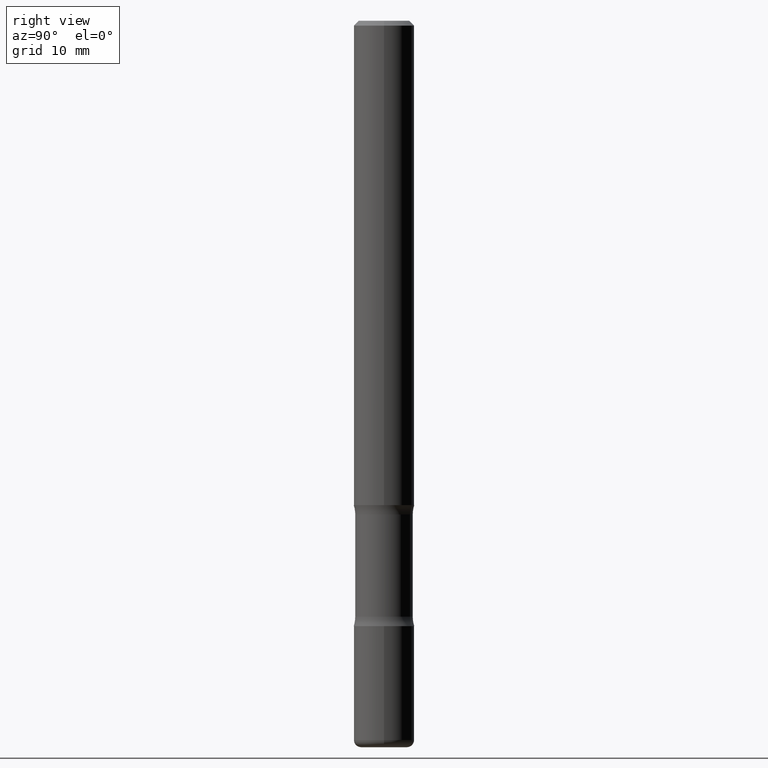
[diagram: clean part render]
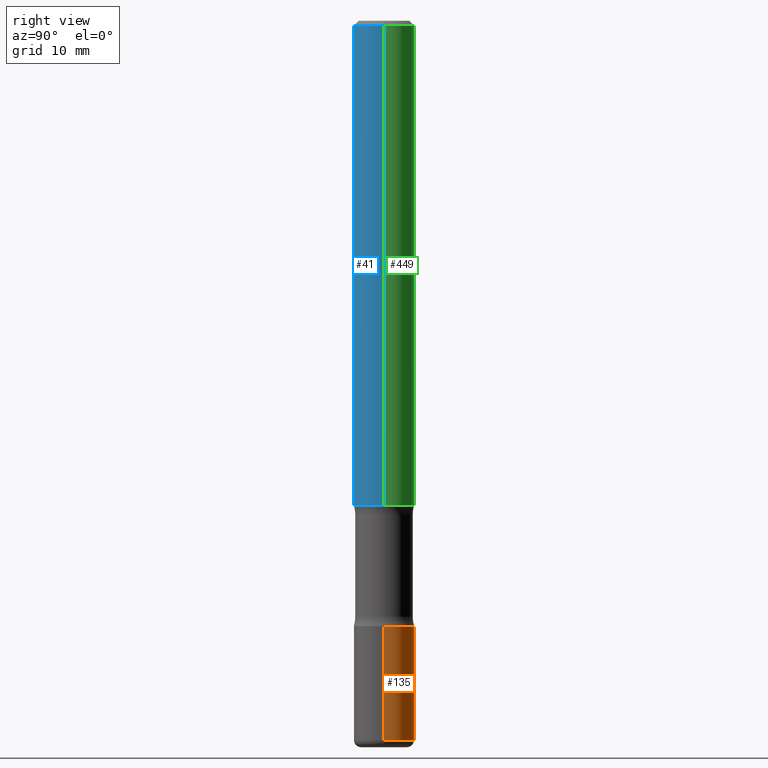
[diagram: same view with three faces highlighted in distinct colors, each labeled with its STEP entity id]
A machine part, right view with three faces highlighted in distinct colors.
Their STEP definitions:

[orange] entity #135 — the highlighted cylindrical surface (edge-blend (fillet) strip) has radius 3.175 mm, axis along (-0, 0, 1).
#17 = CARTESIAN_POINT ( 'NONE',  ( -0.1250000000000000000, -9.481521156664016174E-15, -2.970000000000000195 ) ) ;
#21 = CARTESIAN_POINT ( 'NONE',  ( 0.1250000000000000555, -9.601573681818646704E-15, -2.499999999999999556 ) ) ;
#49 = AXIS2_PLACEMENT_3D ( 'NONE', #230, #533, #511 ) ;
#59 = CARTESIAN_POINT ( 'NONE',  ( 0.1250000000000000000, -1.124256991107492790E-14, -2.970000000000000195 ) ) ;
#62 = VERTEX_POINT ( 'NONE', #17 ) ;
#98 = DIRECTION ( 'NONE',  ( -2.445468806185136597E-29, 3.491481338843145583E-15, 1.000000000000000000 ) ) ;
#125 = AXIS2_PLACEMENT_3D ( 'NONE', #537, #140, #309 ) ;
#135 = ADVANCED_FACE ( 'NONE', ( #347 ), #349, .T. ) ;
#140 = DIRECTION ( 'NONE',  ( -2.445468806185136597E-29, 3.491481338843145583E-15, 1.000000000000000000 ) ) ;
#145 = VERTEX_POINT ( 'NONE', #430 ) ;
#167 = VERTEX_POINT ( 'NONE', #59 ) ;
#179 = VECTOR ( 'NONE', #326, 39.37007874015748143 ) ;
#190 = VECTOR ( 'NONE', #244, 39.37007874015748143 ) ;
#199 = DIRECTION ( 'NONE',  ( 1.000000000000000000, -6.982962677686267499E-15, 0.000000000000000000 ) ) ;
#204 = LINE ( 'NONE', #418, #190 ) ;
#230 = CARTESIAN_POINT ( 'NONE',  ( 7.263042354369856275E-29, -1.036969957636414298E-14, -2.970000000000000195 ) ) ;
#240 = ORIENTED_EDGE ( 'NONE', *, *, #243, .F. ) ;
#242 = ORIENTED_EDGE ( 'NONE', *, *, #508, .F. ) ;
#243 = EDGE_CURVE ( 'NONE', #167, #273, #204, .T. ) ;
#244 = DIRECTION ( 'NONE',  ( -2.445468806185136877E-29, 3.491481338843145188E-15, 1.000000000000000000 ) ) ;
#273 = VERTEX_POINT ( 'NONE', #21 ) ;
#309 = DIRECTION ( 'NONE',  ( 1.000000000000000000, -6.982962677686266711E-15, 4.876176775795935232E-29 ) ) ;
#318 = CARTESIAN_POINT ( 'NONE',  ( 6.113672015462840371E-29, -8.728703347107863365E-15, -2.499999999999999556 ) ) ;
#326 = DIRECTION ( 'NONE',  ( -2.445468806185136877E-29, 3.491481338843145188E-15, 1.000000000000000000 ) ) ;
#347 = FACE_OUTER_BOUND ( 'NONE', #493, .T. ) ;
#349 = CYLINDRICAL_SURFACE ( 'NONE', #125, 0.1250000000000001110 ) ;
#355 = ORIENTED_EDGE ( 'NONE', *, *, #517, .T. ) ;
#367 = EDGE_CURVE ( 'NONE', #167, #62, #472, .T. ) ;
#418 = CARTESIAN_POINT ( 'NONE',  ( 0.1250000000000001110, -8.728703347107841277E-16, 6.095220969744924646E-30 ) ) ;
#424 = AXIS2_PLACEMENT_3D ( 'NONE', #318, #98, #199 ) ;
#430 = CARTESIAN_POINT ( 'NONE',  ( -0.1250000000000000555, -8.661023042035876364E-15, -2.499999999999999556 ) ) ;
#450 = CARTESIAN_POINT ( 'NONE',  ( -0.1250000000000001110, 8.881784197001260212E-16, -6.148668862818637832E-30 ) ) ;
#472 = CIRCLE ( 'NONE', #49, 0.1250000000000001388 ) ;
#493 = EDGE_LOOP ( 'NONE', ( #544, #355, #242, #240 ) ) ;
#508 = EDGE_CURVE ( 'NONE', #273, #145, #552, .T. ) ;
#511 = DIRECTION ( 'NONE',  ( 1.000000000000000000, -6.982962677686270655E-15, 0.000000000000000000 ) ) ;
#517 = EDGE_CURVE ( 'NONE', #62, #145, #545, .T. ) ;
#533 = DIRECTION ( 'NONE',  ( -2.445468806185136597E-29, 3.491481338843145583E-15, 1.000000000000000000 ) ) ;
#537 = CARTESIAN_POINT ( 'NONE',  ( 0.000000000000000000, 0.000000000000000000, 0.000000000000000000 ) ) ;
#544 = ORIENTED_EDGE ( 'NONE', *, *, #367, .T. ) ;
#545 = LINE ( 'NONE', #450, #179 ) ;
#552 = CIRCLE ( 'NONE', #424, 0.1250000000000000555 ) ;

[blue] entity #41 — the highlighted cylindrical surface (edge-blend (fillet) strip) has radius 3.175 mm, axis along (-0, 0, 1).
#6 = LINE ( 'NONE', #166, #11 ) ;
#11 = VECTOR ( 'NONE', #168, 39.37007874015748143 ) ;
#14 = VERTEX_POINT ( 'NONE', #504 ) ;
#30 = CARTESIAN_POINT ( 'NONE',  ( -0.1250000000000000278, -2.638217732531448450E-15, -2.000000000000000000 ) ) ;
#41 = ADVANCED_FACE ( 'NONE', ( #131 ), #141, .T. ) ;
#54 = DIRECTION ( 'NONE',  ( -2.445468806185136597E-29, 3.491481338843145583E-15, 1.000000000000000000 ) ) ;
#85 = AXIS2_PLACEMENT_3D ( 'NONE', #305, #54, #87 ) ;
#87 = DIRECTION ( 'NONE',  ( 1.000000000000000000, -6.982962677686266711E-15, 4.876176775795935793E-29 ) ) ;
#92 = CARTESIAN_POINT ( 'NONE',  ( -0.1249999999999997918, 8.030407079339189559E-16, -0.02000000000000002470 ) ) ;
#123 = EDGE_CURVE ( 'NONE', #319, #14, #235, .T. ) ;
#131 = FACE_OUTER_BOUND ( 'NONE', #406, .T. ) ;
#141 = CYLINDRICAL_SURFACE ( 'NONE', #85, 0.1249999999999999167 ) ;
#154 = ORIENTED_EDGE ( 'NONE', *, *, #272, .T. ) ;
#166 = CARTESIAN_POINT ( 'NONE',  ( -0.1249999999999999167, 8.881784197001246407E-16, -6.148668862818628023E-30 ) ) ;
#168 = DIRECTION ( 'NONE',  ( -2.445468806185136877E-29, 3.491481338843145188E-15, 1.000000000000000000 ) ) ;
#180 = CARTESIAN_POINT ( 'NONE',  ( 4.890937612370273194E-29, -6.982962677686291165E-15, -2.000000000000000000 ) ) ;
#181 = CARTESIAN_POINT ( 'NONE',  ( 0.1249999999999999167, -8.728703347107827472E-16, 6.095220969744915537E-30 ) ) ;
#185 = DIRECTION ( 'NONE',  ( -2.445468806185136597E-29, 3.491481338843145583E-15, 1.000000000000000000 ) ) ;
#217 = ORIENTED_EDGE ( 'NONE', *, *, #345, .T. ) ;
#235 = CIRCLE ( 'NONE', #277, 0.1249999999999997918 ) ;
#268 = ORIENTED_EDGE ( 'NONE', *, *, #123, .F. ) ;
#272 = EDGE_CURVE ( 'NONE', #296, #357, #350, .T. ) ;
#277 = AXIS2_PLACEMENT_3D ( 'NONE', #303, #354, #539 ) ;
#296 = VERTEX_POINT ( 'NONE', #30 ) ;
#302 = CARTESIAN_POINT ( 'NONE',  ( 0.1250000000000000278, -7.855833012397075293E-15, -2.000000000000000000 ) ) ;
#303 = CARTESIAN_POINT ( 'NONE',  ( 4.890937612370279289E-31, -6.982962677686299005E-17, -0.02000000000000002470 ) ) ;
#305 = CARTESIAN_POINT ( 'NONE',  ( 0.000000000000000000, 0.000000000000000000, 0.000000000000000000 ) ) ;
#314 = DIRECTION ( 'NONE',  ( -2.445468806185136877E-29, 3.491481338843145188E-15, 1.000000000000000000 ) ) ;
#319 = VERTEX_POINT ( 'NONE', #92 ) ;
#345 = EDGE_CURVE ( 'NONE', #357, #14, #491, .T. ) ;
#350 = CIRCLE ( 'NONE', #503, 0.1250000000000000278 ) ;
#354 = DIRECTION ( 'NONE',  ( -2.445468806185136597E-29, 3.491481338843145583E-15, 1.000000000000000000 ) ) ;
#357 = VERTEX_POINT ( 'NONE', #302 ) ;
#406 = EDGE_LOOP ( 'NONE', ( #438, #154, #217, #268 ) ) ;
#410 = VECTOR ( 'NONE', #314, 39.37007874015748143 ) ;
#438 = ORIENTED_EDGE ( 'NONE', *, *, #442, .F. ) ;
#442 = EDGE_CURVE ( 'NONE', #296, #319, #6, .T. ) ;
#486 = DIRECTION ( 'NONE',  ( 1.000000000000000000, -6.982962677686269077E-15, 0.000000000000000000 ) ) ;
#491 = LINE ( 'NONE', #181, #410 ) ;
#503 = AXIS2_PLACEMENT_3D ( 'NONE', #180, #185, #486 ) ;
#504 = CARTESIAN_POINT ( 'NONE',  ( 0.1249999999999997918, -9.273918764983029686E-16, -0.02000000000000002470 ) ) ;
#539 = DIRECTION ( 'NONE',  ( 1.000000000000000000, -6.982962677686266711E-15, 0.000000000000000000 ) ) ;

[green] entity #449 — the highlighted cylindrical surface (edge-blend (fillet) strip) has radius 3.175 mm, axis along (-0, 0, 1).
#6 = LINE ( 'NONE', #166, #11 ) ;
#11 = VECTOR ( 'NONE', #168, 39.37007874015748143 ) ;
#14 = VERTEX_POINT ( 'NONE', #504 ) ;
#30 = CARTESIAN_POINT ( 'NONE',  ( -0.1250000000000000278, -2.638217732531448450E-15, -2.000000000000000000 ) ) ;
#42 = CARTESIAN_POINT ( 'NONE',  ( 0.000000000000000000, 0.000000000000000000, 0.000000000000000000 ) ) ;
#70 = DIRECTION ( 'NONE',  ( -2.445468806185136597E-29, 3.491481338843145583E-15, 1.000000000000000000 ) ) ;
#83 = DIRECTION ( 'NONE',  ( 1.000000000000000000, -6.982962677686269077E-15, 0.000000000000000000 ) ) ;
#92 = CARTESIAN_POINT ( 'NONE',  ( -0.1249999999999997918, 8.030407079339189559E-16, -0.02000000000000002470 ) ) ;
#124 = DIRECTION ( 'NONE',  ( 1.000000000000000000, -6.982962677686266711E-15, 0.000000000000000000 ) ) ;
#132 = EDGE_CURVE ( 'NONE', #357, #296, #549, .T. ) ;
#166 = CARTESIAN_POINT ( 'NONE',  ( -0.1249999999999999167, 8.881784197001246407E-16, -6.148668862818628023E-30 ) ) ;
#168 = DIRECTION ( 'NONE',  ( -2.445468806185136877E-29, 3.491481338843145188E-15, 1.000000000000000000 ) ) ;
#181 = CARTESIAN_POINT ( 'NONE',  ( 0.1249999999999999167, -8.728703347107827472E-16, 6.095220969744915537E-30 ) ) ;
#278 = AXIS2_PLACEMENT_3D ( 'NONE', #42, #70, #519 ) ;
#296 = VERTEX_POINT ( 'NONE', #30 ) ;
#302 = CARTESIAN_POINT ( 'NONE',  ( 0.1250000000000000278, -7.855833012397075293E-15, -2.000000000000000000 ) ) ;
#312 = DIRECTION ( 'NONE',  ( -2.445468806185136597E-29, 3.491481338843145583E-15, 1.000000000000000000 ) ) ;
#313 = ORIENTED_EDGE ( 'NONE', *, *, #345, .F. ) ;
#314 = DIRECTION ( 'NONE',  ( -2.445468806185136877E-29, 3.491481338843145188E-15, 1.000000000000000000 ) ) ;
#319 = VERTEX_POINT ( 'NONE', #92 ) ;
#320 = ORIENTED_EDGE ( 'NONE', *, *, #404, .F. ) ;
#345 = EDGE_CURVE ( 'NONE', #357, #14, #491, .T. ) ;
#357 = VERTEX_POINT ( 'NONE', #302 ) ;
#404 = EDGE_CURVE ( 'NONE', #14, #319, #454, .T. ) ;
#408 = ORIENTED_EDGE ( 'NONE', *, *, #442, .T. ) ;
#410 = VECTOR ( 'NONE', #314, 39.37007874015748143 ) ;
#421 = FACE_OUTER_BOUND ( 'NONE', #478, .T. ) ;
#423 = CYLINDRICAL_SURFACE ( 'NONE', #278, 0.1249999999999999167 ) ;
#442 = EDGE_CURVE ( 'NONE', #296, #319, #6, .T. ) ;
#449 = ADVANCED_FACE ( 'NONE', ( #421 ), #423, .T. ) ;
#454 = CIRCLE ( 'NONE', #543, 0.1249999999999997918 ) ;
#459 = DIRECTION ( 'NONE',  ( -2.445468806185136597E-29, 3.491481338843145583E-15, 1.000000000000000000 ) ) ;
#467 = ORIENTED_EDGE ( 'NONE', *, *, #132, .T. ) ;
#477 = CARTESIAN_POINT ( 'NONE',  ( 4.890937612370273194E-29, -6.982962677686291165E-15, -2.000000000000000000 ) ) ;
#478 = EDGE_LOOP ( 'NONE', ( #467, #408, #320, #313 ) ) ;
#480 = AXIS2_PLACEMENT_3D ( 'NONE', #477, #312, #83 ) ;
#491 = LINE ( 'NONE', #181, #410 ) ;
#504 = CARTESIAN_POINT ( 'NONE',  ( 0.1249999999999997918, -9.273918764983029686E-16, -0.02000000000000002470 ) ) ;
#519 = DIRECTION ( 'NONE',  ( 1.000000000000000000, -6.982962677686266711E-15, 4.876176775795935793E-29 ) ) ;
#543 = AXIS2_PLACEMENT_3D ( 'NONE', #559, #459, #124 ) ;
#549 = CIRCLE ( 'NONE', #480, 0.1250000000000000278 ) ;
#559 = CARTESIAN_POINT ( 'NONE',  ( 4.890937612370279289E-31, -6.982962677686299005E-17, -0.02000000000000002470 ) ) ;